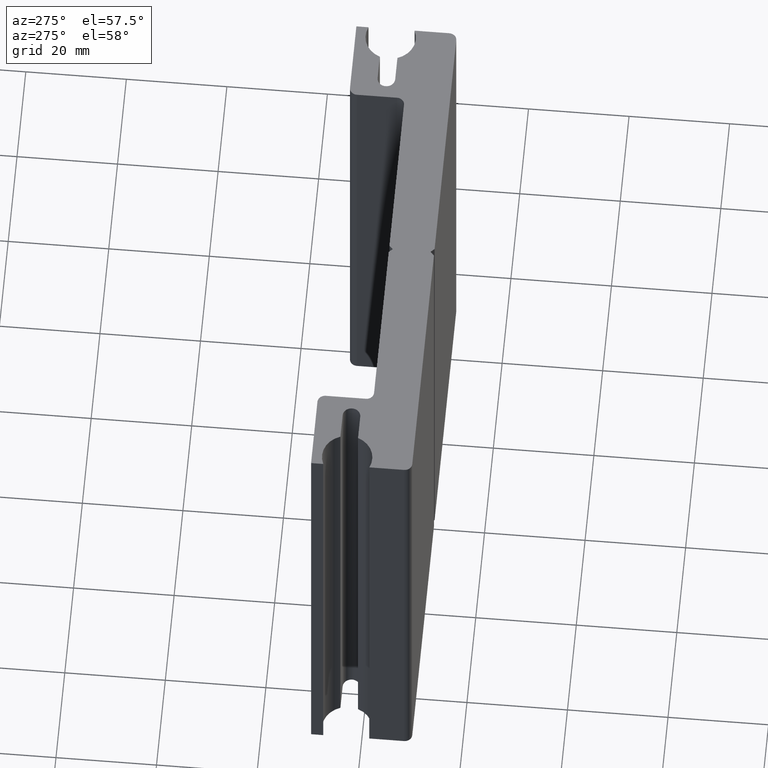
[diagram: clean part render]
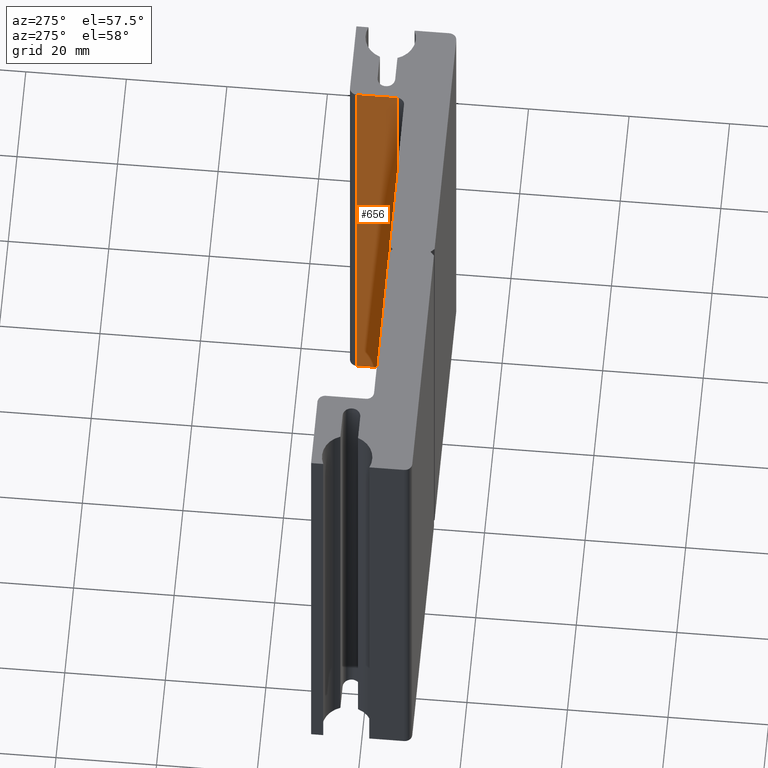
[diagram: same view with one face highlighted and labeled with its STEP entity id]
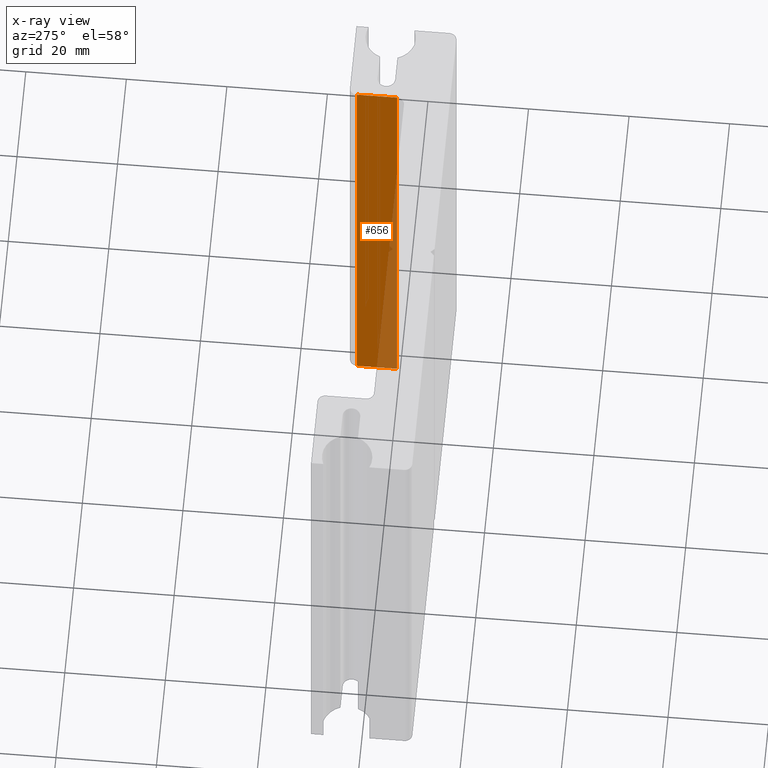
[diagram: x-ray of the same camera — body ghosted, the highlighted face saturated]
A machine part, auxiliary view. The second image highlights one B-rep face of the part: STEP entity #656.
The next image is the same camera in x-ray: the body ghosted, the highlighted face saturated — about 18% of this face is hidden behind the body in this view.
In plain terms, the highlighted planar face has unit normal (1, 0, 0).
Its self-contained STEP definition (entity closure, byte-faithful):
#70=FACE_OUTER_BOUND('',#104,.T.);
#104=EDGE_LOOP('',(#543,#544,#545,#546));
#150=LINE('',#1048,#222);
#171=LINE('',#1102,#243);
#179=LINE('',#1119,#251);
#180=LINE('',#1121,#252);
#222=VECTOR('',#847,10.);
#243=VECTOR('',#888,10.);
#251=VECTOR('',#902,10.);
#252=VECTOR('',#905,10.);
#300=VERTEX_POINT('',#1045);
#301=VERTEX_POINT('',#1047);
#323=VERTEX_POINT('',#1099);
#324=VERTEX_POINT('',#1101);
#373=EDGE_CURVE('',#300,#301,#150,.T.);
#401=EDGE_CURVE('',#323,#324,#171,.T.);
#411=EDGE_CURVE('',#301,#323,#179,.T.);
#412=EDGE_CURVE('',#324,#300,#180,.T.);
#543=ORIENTED_EDGE('',*,*,#411,.F.);
#544=ORIENTED_EDGE('',*,*,#373,.F.);
#545=ORIENTED_EDGE('',*,*,#412,.F.);
#546=ORIENTED_EDGE('',*,*,#401,.F.);
#626=PLANE('',#744);
#656=ADVANCED_FACE('',(#70),#626,.F.);
#744=AXIS2_PLACEMENT_3D('',#1120,#903,#904);
#847=DIRECTION('',(0.,1.,0.));
#888=DIRECTION('',(0.,-1.,0.));
#902=DIRECTION('',(0.,0.,1.));
#903=DIRECTION('center_axis',(1.,0.,0.));
#904=DIRECTION('ref_axis',(0.,-1.,0.));
#905=DIRECTION('',(0.,0.,-1.));
#1045=CARTESIAN_POINT('',(35.5,0.500000000000004,0.));
#1047=CARTESIAN_POINT('',(35.5,8.5,0.));
#1048=CARTESIAN_POINT('',(35.5,5.,0.));
#1099=CARTESIAN_POINT('',(35.5,8.5,100.));
#1101=CARTESIAN_POINT('',(35.5,0.500000000000004,100.));
#1102=CARTESIAN_POINT('',(35.5,5.,100.));
#1119=CARTESIAN_POINT('',(35.5,8.5,50.));
#1120=CARTESIAN_POINT('Origin',(35.5,10.,100.));
#1121=CARTESIAN_POINT('',(35.5,0.500000000000004,100.));